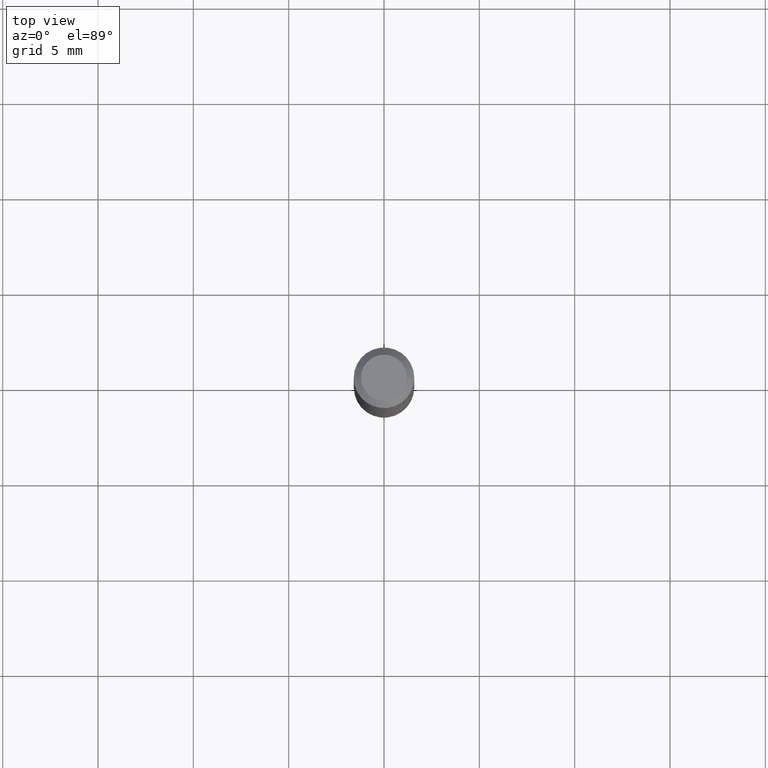
[diagram: clean part render]
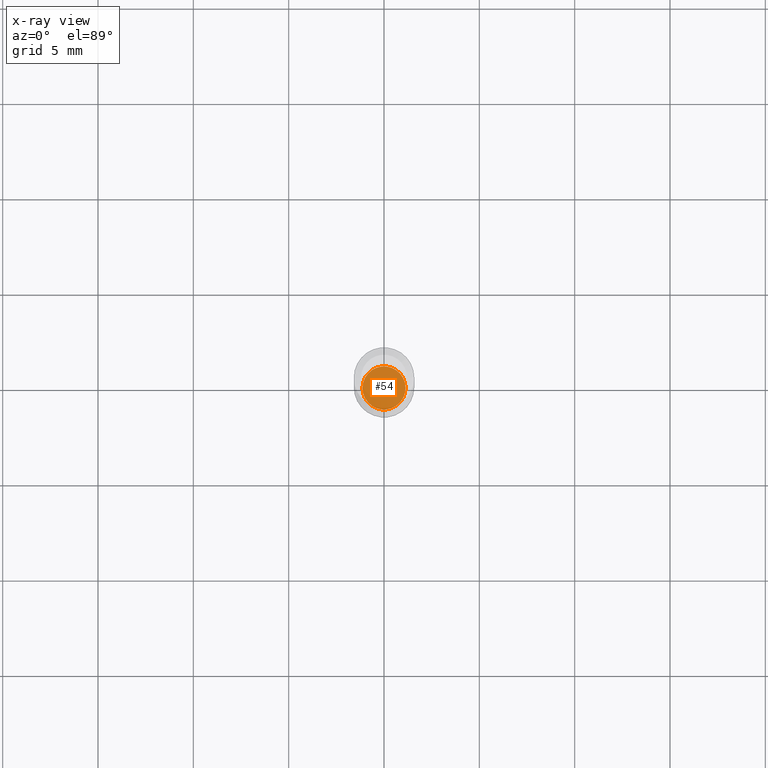
[diagram: x-ray — body ghosted, one internal face saturated and labeled with its STEP entity id]
A machine part, top view, then the same camera in x-ray: the body is ghosted and one INTERNAL B-rep face — a face not visible from any outside direction — is saturated and labeled: STEP entity #54.
In plain terms, the highlighted planar face has unit normal (-0, 0, 1).
Its self-contained STEP definition (entity closure, byte-faithful):
#46 = DIRECTION ( 'NONE',  ( 1.000000000000000000, -6.982962677686257244E-15, 0.000000000000000000 ) ) ;
#54 = ADVANCED_FACE ( 'NONE', ( #321 ), #216, .F. ) ;
#79 = CARTESIAN_POINT ( 'NONE',  ( 3.007926631607718216E-29, -4.294522046777069173E-15, -1.230000000000000204 ) ) ;
#131 = VERTEX_POINT ( 'NONE', #439 ) ;
#138 = ORIENTED_EDGE ( 'NONE', *, *, #401, .F. ) ;
#147 = EDGE_LOOP ( 'NONE', ( #138, #347 ) ) ;
#155 = EDGE_CURVE ( 'NONE', #171, #131, #444, .T. ) ;
#161 = CARTESIAN_POINT ( 'NONE',  ( -0.04449999999999999789, -3.975681302189713503E-15, -1.230000000000000204 ) ) ;
#171 = VERTEX_POINT ( 'NONE', #161 ) ;
#177 = CARTESIAN_POINT ( 'NONE',  ( 3.007926631607718216E-29, -4.294522046777069173E-15, -1.230000000000000204 ) ) ;
#214 = DIRECTION ( 'NONE',  ( 1.000000000000000000, -6.982962677686265922E-15, 4.876176775795935793E-29 ) ) ;
#216 = PLANE ( 'NONE',  #222 ) ;
#220 = CARTESIAN_POINT ( 'NONE',  ( 3.007926631607718216E-29, -4.294522046777069173E-15, -1.230000000000000204 ) ) ;
#222 = AXIS2_PLACEMENT_3D ( 'NONE', #79, #360, #214 ) ;
#239 = AXIS2_PLACEMENT_3D ( 'NONE', #220, #365, #46 ) ;
#240 = AXIS2_PLACEMENT_3D ( 'NONE', #177, #314, #356 ) ;
#314 = DIRECTION ( 'NONE',  ( -2.445468806185136597E-29, 3.491481338843145583E-15, 1.000000000000000000 ) ) ;
#321 = FACE_OUTER_BOUND ( 'NONE', #147, .T. ) ;
#343 = CIRCLE ( 'NONE', #240, 0.04449999999999999789 ) ;
#347 = ORIENTED_EDGE ( 'NONE', *, *, #155, .F. ) ;
#356 = DIRECTION ( 'NONE',  ( 1.000000000000000000, -6.982962677686257244E-15, 0.000000000000000000 ) ) ;
#360 = DIRECTION ( 'NONE',  ( -2.438088387897960049E-29, 3.491481338843145188E-15, 1.000000000000000000 ) ) ;
#365 = DIRECTION ( 'NONE',  ( -2.445468806185136597E-29, 3.491481338843145583E-15, 1.000000000000000000 ) ) ;
#401 = EDGE_CURVE ( 'NONE', #131, #171, #343, .T. ) ;
#439 = CARTESIAN_POINT ( 'NONE',  ( 0.04449999999999999789, -4.605263885934107852E-15, -1.230000000000000204 ) ) ;
#444 = CIRCLE ( 'NONE', #239, 0.04449999999999999789 ) ;